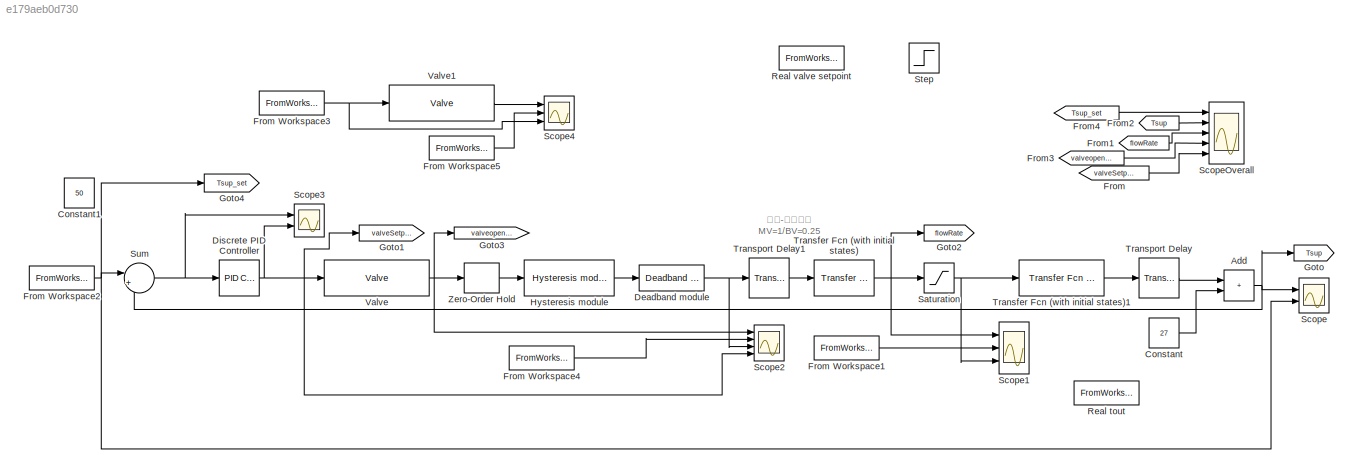
MODEL slx_e179aeb0d730
KIND model
CONFIG AbsTol = auto
CONFIG EnableMultiTasking = off
CONFIG FixedStep = auto
CONFIG MaxStep = auto
CONFIG MinStep = auto
CONFIG RelTol = 1e-3
CONFIG SampleTimeConstraint = Unconstrained
CONFIG SolverName = VariableStepAuto
CONFIG StartTime = 0.0
CONFIG StopTime = 1500
WORKSPACE source: mxarray member
WORKSPACE G_sup_tsp: Simulink.Signal (value not decoded)
BLOCK [Sum] Add
  IconShape = rectangular
  Ports = [2, 1]
BLOCK [Constant] Constant
  Value = 27
BLOCK [Constant] Constant1
  Value = 50
BLOCK [Reference] Deadband module  REF=IMT_Library/Deadband module
  Ports = [1, 1]
  SourceBlock = IMT_Library/Deadband module
  SourceProductName = Imitation
BLOCK [Reference] Discrete PID Controller  REF=slpidlib/PID Controller
  Ports = [1, 1]
  SourceBlock = slpidlib/PID Controller
  SourceProductBaseCode = SL
  SourceType = PID 1dof
BLOCK [From] From
  GotoTag = valveSetpoint
BLOCK [FromWorkspace] From Workspace1
  VariableName = testData(:,[1,5])
BLOCK [FromWorkspace] From Workspace2
  SampleTime = 1
  VariableName = simuSig(:,[1,2])
BLOCK [FromWorkspace] From Workspace3
  SampleTime = 1
  VariableName = valveSig(:,[1,14])
BLOCK [FromWorkspace] From Workspace4
  SampleTime = 1
  VariableName = testData(:,[1,8])
BLOCK [FromWorkspace] From Workspace5
  SampleTime = 1
  VariableName = valveSig(:,[1,13])
BLOCK [From] From1
  GotoTag = flowRate
BLOCK [From] From2
  GotoTag = Tsup
BLOCK [From] From3
  GotoTag = valveopening
BLOCK [From] From4
  GotoTag = Tsup_set
BLOCK [Goto] Goto
  GotoTag = Tsup
BLOCK [Goto] Goto1
  GotoTag = valveSetpoint
BLOCK [Goto] Goto2
  GotoTag = flowRate
BLOCK [Goto] Goto3
  GotoTag = valveopening
BLOCK [Goto] Goto4
  GotoTag = Tsup_set
BLOCK [Reference] Hysteresis module  REF=IMT_Library/Hysteresis module
  Ports = [1, 1]
  SourceBlock = IMT_Library/Hysteresis module
  SourceProductName = Imitation
BLOCK [FromWorkspace] Real tout
  VariableName = testData(:,[1,9])
BLOCK [FromWorkspace] Real valve setpoint
  SampleTime = 1
  VariableName = testData(300:800,[1,4])
BLOCK [Saturate] Saturation
  LowerLimit = 0
  UpperLimit = 0.25
BLOCK [Scope] Scope
  Floating = off
  NumInputPorts = 2
  Ports = [2]
  ScopeSpecificationString = Simulink.scopes.TimeScopeBlockCfg('CurrentConfiguration', extmgr.ConfigurationSet(extmgr.Configuration('Core','General UI',true),extmgr.Configuration('Core','Source UI',true),extmgr.Configuration('Sources','WiredSimulink',true,'DataLogging',true,'DataLoggingVariableName','ScopeData1'),extmgr.Configuration('Visuals','Time Domain',true,'SerializedDisplays',{struct('MinYLimReal','19.1925','MaxYLimRea...<+1525ch>
BLOCK [Scope] Scope1
  Floating = off
  NumInputPorts = 3
  Ports = [3]
  ScopeSpecificationString = Simulink.scopes.TimeScopeBlockCfg('CurrentConfiguration', extmgr.ConfigurationSet(extmgr.Configuration('Core','General UI',true),extmgr.Configuration('Core','Source UI',true),extmgr.Configuration('Sources','WiredSimulink',true,'DataLogging',true),extmgr.Configuration('Visuals','Time Domain',true,'SerializedDisplays',{struct('MinYLimReal','-0.09','MaxYLimReal','0.80997','YLabelReal','','MinYLimMag'...<+1859ch>
BLOCK [Scope] Scope2
  Floating = off
  NumInputPorts = 4
  Ports = [4]
  ScopeSpecificationString = Simulink.scopes.TimeScopeBlockCfg('CurrentConfiguration', extmgr.ConfigurationSet(extmgr.Configuration('Core','General UI',true),extmgr.Configuration('Core','Source UI',true),extmgr.Configuration('Sources','WiredSimulink',true,'DataLogging',true,'DataLoggingVariableName','ScopeData2'),extmgr.Configuration('Visuals','Time Domain',true,'SerializedDisplays',{struct('MinYLimReal','-4.20525','MaxYLimRe...<+1910ch>
BLOCK [Scope] Scope3
  Floating = off
  NumInputPorts = 2
  Ports = [2]
  ScopeSpecificationString = Simulink.scopes.TimeScopeBlockCfg('CurrentConfiguration', extmgr.ConfigurationSet(extmgr.Configuration('Core','General UI',true),extmgr.Configuration('Core','Source UI',true),extmgr.Configuration('Sources','WiredSimulink',true,'DataLoggingVariableName','ScopeData1'),extmgr.Configuration('Visuals','Time Domain',true,'SerializedDisplays',{struct('MinYLimReal','-6.48593','MaxYLimReal','26.27621','YLa...<+1423ch>
BLOCK [Scope] Scope4
  Floating = off
  NumInputPorts = 3
  Ports = [3]
  ScopeSpecificationString = Simulink.scopes.TimeScopeBlockCfg('CurrentConfiguration', extmgr.ConfigurationSet(extmgr.Configuration('Core','General UI',true),extmgr.Configuration('Core','Source UI',true),extmgr.Configuration('Sources','WiredSimulink',true,'DataLoggingVariableName','ScopeValve','DataLogging',true),extmgr.Configuration('Visuals','Time Domain',true,'SerializedDisplays',{struct('MinYLimReal','30.03742','MaxYLimRe...<+1865ch>
BLOCK [Scope] ScopeOverall
  Floating = off
  NumInputPorts = 5
  Ports = [5]
  ScopeSpecificationString = Simulink.scopes.TimeScopeBlockCfg('CurrentConfiguration', extmgr.ConfigurationSet(extmgr.Configuration('Core','General UI',true),extmgr.Configuration('Core','Source UI',true),extmgr.Configuration('Sources','WiredSimulink',true,'DataLoggingVariableName','Scope_overall','DataLogging',true),extmgr.Configuration('Visuals','Time Domain',true,'SerializedDisplays',{struct('MinYLimReal','-6.45496','MaxYLi...<+1527ch>
BLOCK [Step] Step
  After = 0.31
  SampleTime = 0
  Time = 18
BLOCK [Sum] Sum
  Inputs = |+-
  Ports = [2, 1]
BLOCK [Reference] Transfer Fcn (with initial states)  REF=simulink_extras/Additional
Linear/Transfer Fcn
(with initial states)
  Ports = [1, 1]
  SourceBlock = simulink_extras/Additional\nLinear/Transfer Fcn\n(with initial states)
  SourceProductBaseCode = SL
  SourceType = Transfer Function with Initial States
BLOCK [Reference] Transfer Fcn (with initial states)1  REF=simulink_extras/Additional
Linear/Transfer Fcn
(with initial states)
  Ports = [1, 1]
  SourceBlock = simulink_extras/Additional\nLinear/Transfer Fcn\n(with initial states)
  SourceProductBaseCode = SL
  SourceType = Transfer Function with Initial States
BLOCK [TransportDelay] Transport Delay
  DelayTime = 0
  Ports = [1, 1]
BLOCK [TransportDelay] Transport Delay1
  DelayTime = 3
  Ports = [1, 1]
BLOCK [Reference] Valve  REF=IMT_Library/Valve
  Ports = [1, 1]
  SourceBlock = IMT_Library/Valve
  SourceProductName = Imitation
BLOCK [Reference] Valve1  REF=IMT_Library/Valve
  Ports = [1, 1]
  SourceBlock = IMT_Library/Valve
  SourceProductName = Imitation
BLOCK [ZeroOrderHold] Zero-Order Hold
ANNOTATION (root): 阀门-流量过程 MV=1/BV=0.25
NET Add:1 -> Goto:1, Scope:1, Sum:2
LINE Constant:1 -> Add:2
NET Deadband module:1 -> Scope2:3, Transport Delay1:1
NET Discrete PID Controller:1 -> Goto1:1, Scope2:4, Scope3:2, Valve:1
LINE From Workspace1:1 -> Scope1:2
NET From Workspace2:1 -> Goto4:1, Scope:2, Sum:1
NET From Workspace3:1 -> Scope4:3, Valve1:1
LINE From Workspace4:1 -> Scope2:2
LINE From Workspace5:1 -> Scope4:2
LINE From1:1 -> ScopeOverall:3
LINE From2:1 -> ScopeOverall:2
LINE From3:1 -> ScopeOverall:4
LINE From4:1 -> ScopeOverall:1
LINE From:1 -> ScopeOverall:5
LINE Hysteresis module:1 -> Deadband module:1
NET Saturation:1 -> Scope1:3, Transfer Fcn (with initial states)1:1
NET Sum:1 -> Discrete PID Controller:1, Scope3:1
LINE Transfer Fcn (with initial states)1:1 -> Transport Delay:1
NET Transfer Fcn (with initial states):1 -> Goto2:1, Saturation:1, Scope1:1
LINE Transport Delay1:1 -> Transfer Fcn (with initial states):1
LINE Transport Delay:1 -> Add:1
LINE Valve1:1 -> Scope4:1
NET Valve:1 -> Goto3:1, Scope2:1, Zero-Order Hold:1
LINE Zero-Order Hold:1 -> Hysteresis module:1
note: NET lines group one-source signal fan-out (src -> all destinations, sorted); 1:1 wires keep LINE
